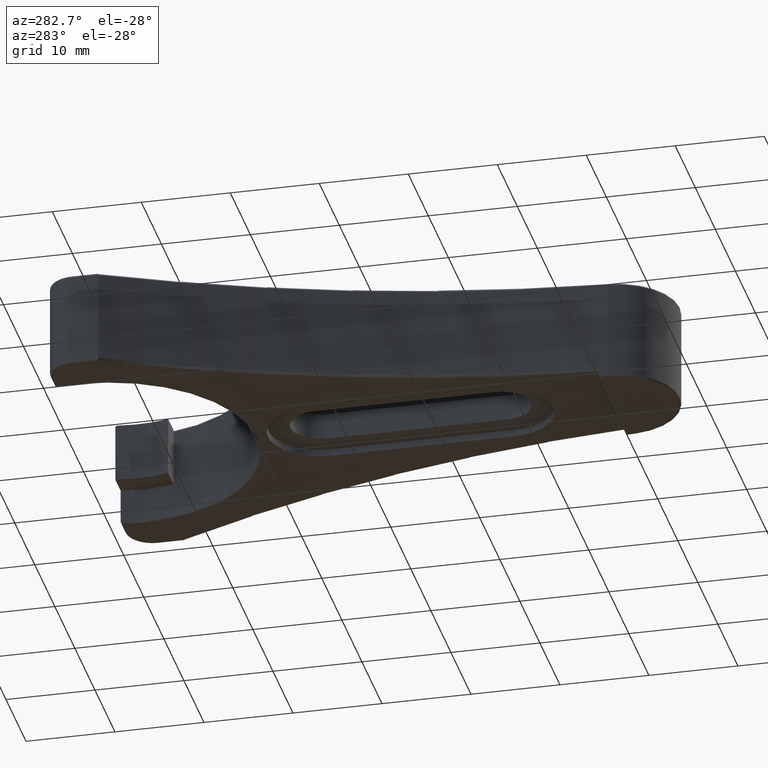
[diagram: clean part render]
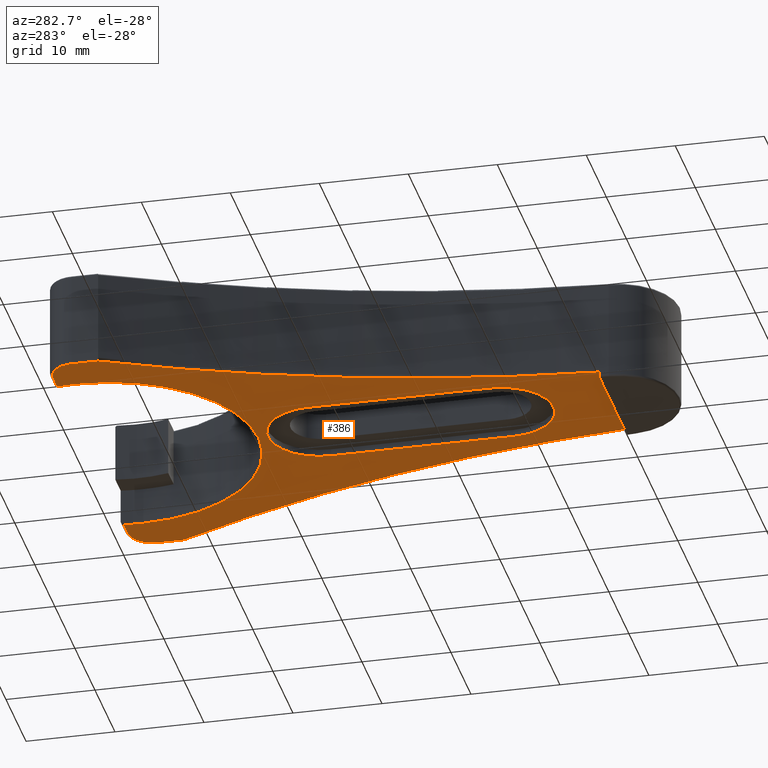
[diagram: same view with one face highlighted and labeled with its STEP entity id]
A machine part, auxiliary view. The second image highlights one B-rep face of the part: STEP entity #386.
In plain terms, the highlighted planar face has unit normal (-0, 0, 1).
Its self-contained STEP definition (entity closure, byte-faithful):
#1 = VERTEX_POINT ( 'NONE', #1088 ) ;
#3 = DIRECTION ( 'NONE',  ( 1.000000000000000000, 0.0000000000000000000, 0.0000000000000000000 ) ) ;
#4 = EDGE_CURVE ( 'NONE', #1, #32, #1930, .T. ) ;
#15 = CARTESIAN_POINT ( 'NONE',  ( -6.812482705004951500, 0.4999999999999865700, 0.0000000000000000000 ) ) ;
#25 = LINE ( 'NONE', #1257, #1774 ) ;
#32 = VERTEX_POINT ( 'NONE', #795 ) ;
#33 = DIRECTION ( 'NONE',  ( 1.000000000000000000, 0.0000000000000000000, 0.0000000000000000000 ) ) ;
#48 = CARTESIAN_POINT ( 'NONE',  ( 6.812482704986521800, 0.4999999999999865700, 0.0000000000000000000 ) ) ;
#56 = EDGE_CURVE ( 'NONE', #1946, #1012, #1042, .T. ) ;
#68 = VERTEX_POINT ( 'NONE', #1266 ) ;
#69 = AXIS2_PLACEMENT_3D ( 'NONE', #257, #1954, #568 ) ;
#79 = LINE ( 'NONE', #1793, #1027 ) ;
#93 = EDGE_CURVE ( 'NONE', #32, #1391, #25, .T. ) ;
#104 = CARTESIAN_POINT ( 'NONE',  ( -9.222417756143833600E-012, 57.00000000000057600, 0.0000000000000000000 ) ) ;
#117 = EDGE_CURVE ( 'NONE', #1070, #1139, #477, .T. ) ;
#120 = CIRCLE ( 'NONE', #69, 16.65000000000011600 ) ;
#121 = CARTESIAN_POINT ( 'NONE',  ( -18.65000000000922100, 59.24999999999925400, 0.0000000000000000000 ) ) ;
#147 = DIRECTION ( 'NONE',  ( -0.0000000000000000000, 0.0000000000000000000, 1.000000000000000000 ) ) ;
#167 = CIRCLE ( 'NONE', #1251, 2.750000000000005800 ) ;
#191 = CARTESIAN_POINT ( 'NONE',  ( -21.40000000000922500, 56.49999999999924700, 0.0000000000000000000 ) ) ;
#206 = CARTESIAN_POINT ( 'NONE',  ( 7.063372027942604900, 0.4999999999999865700, 0.0000000000000000000 ) ) ;
#210 = ORIENTED_EDGE ( 'NONE', *, *, #1163, .T. ) ;
#222 = CIRCLE ( 'NONE', #1445, 16.65000000000011600 ) ;
#225 = EDGE_CURVE ( 'NONE', #1425, #1, #120, .T. ) ;
#257 = CARTESIAN_POINT ( 'NONE',  ( -9.222417756143833600E-012, 57.00000000000057600, 0.0000000000000000000 ) ) ;
#263 = DIRECTION ( 'NONE',  ( 1.000000000000000000, 0.0000000000000000000, 0.0000000000000000000 ) ) ;
#268 = DIRECTION ( 'NONE',  ( -0.0000000000000000000, -1.000000000000000000, -0.0000000000000000000 ) ) ;
#277 = CARTESIAN_POINT ( 'NONE',  ( -5.800000000000069100, 13.00000000000078900, 0.0000000000000000000 ) ) ;
#326 = ORIENTED_EDGE ( 'NONE', *, *, #1907, .T. ) ;
#344 = DIRECTION ( 'NONE',  ( 0.0000000000000000000, -0.0000000000000000000, -1.000000000000000000 ) ) ;
#351 = AXIS2_PLACEMENT_3D ( 'NONE', #1489, #1981, #1972 ) ;
#354 = CARTESIAN_POINT ( 'NONE',  ( -9.222417756143833600E-012, 57.00000000000057600, 0.0000000000000000000 ) ) ;
#386 = ADVANCED_FACE ( 'NONE', ( #1874, #1455 ), #1047, .F. ) ;
#401 = DIRECTION ( 'NONE',  ( -1.156482317317913300E-015, -1.000000000000000000, 0.0000000000000000000 ) ) ;
#407 = AXIS2_PLACEMENT_3D ( 'NONE', #1980, #147, #3 ) ;
#411 = VERTEX_POINT ( 'NONE', #1844 ) ;
#418 = VECTOR ( 'NONE', #268, 1000.000000000000000 ) ;
#435 = VECTOR ( 'NONE', #1559, 1000.000000000000000 ) ;
#471 = DIRECTION ( 'NONE',  ( -1.156482317317913300E-015, 1.000000000000000000, -0.0000000000000000000 ) ) ;
#473 = ORIENTED_EDGE ( 'NONE', *, *, #1631, .T. ) ;
#477 = LINE ( 'NONE', #1914, #580 ) ;
#482 = AXIS2_PLACEMENT_3D ( 'NONE', #778, #344, #33 ) ;
#484 = VERTEX_POINT ( 'NONE', #1779 ) ;
#500 = CIRCLE ( 'NONE', #1094, 150.2500000000000300 ) ;
#513 = EDGE_CURVE ( 'NONE', #1662, #1813, #79, .T. ) ;
#543 = EDGE_CURVE ( 'NONE', #1813, #1425, #222, .T. ) ;
#547 = EDGE_CURVE ( 'NONE', #484, #411, #948, .T. ) ;
#565 = ORIENTED_EDGE ( 'NONE', *, *, #737, .T. ) ;
#568 = DIRECTION ( 'NONE',  ( 1.000000000000000000, 0.0000000000000000000, 0.0000000000000000000 ) ) ;
#569 = CARTESIAN_POINT ( 'NONE',  ( 5.800000000000011400, 13.00000000000078900, 0.0000000000000000000 ) ) ;
#580 = VECTOR ( 'NONE', #401, 1000.000000000000000 ) ;
#607 = EDGE_CURVE ( 'NONE', #411, #1486, #1754, .T. ) ;
#683 = ORIENTED_EDGE ( 'NONE', *, *, #1583, .T. ) ;
#691 = ORIENTED_EDGE ( 'NONE', *, *, #4, .T. ) ;
#692 = CARTESIAN_POINT ( 'NONE',  ( 18.64999999999077900, 59.24999999999925400, 0.0000000000000000000 ) ) ;
#709 = ORIENTED_EDGE ( 'NONE', *, *, #607, .T. ) ;
#724 = AXIS2_PLACEMENT_3D ( 'NONE', #1401, #1557, #1388 ) ;
#737 = EDGE_CURVE ( 'NONE', #68, #1151, #1655, .T. ) ;
#778 = CARTESIAN_POINT ( 'NONE',  ( -18.65000000000922100, 56.49999999999924700, 0.0000000000000000000 ) ) ;
#782 = AXIS2_PLACEMENT_3D ( 'NONE', #354, #1906, #1578 ) ;
#795 = CARTESIAN_POINT ( 'NONE',  ( 16.49727250183210000, 59.24999999999924700, 0.0000000000000000000 ) ) ;
#834 = EDGE_CURVE ( 'NONE', #1139, #1012, #1977, .T. ) ;
#872 = CARTESIAN_POINT ( 'NONE',  ( 0.0000000000000000000, 13.00000000000078900, 0.0000000000000000000 ) ) ;
#896 = CARTESIAN_POINT ( 'NONE',  ( -16.49727250185054600, 59.24999999999924700, 0.0000000000000000000 ) ) ;
#899 = ORIENTED_EDGE ( 'NONE', *, *, #547, .T. ) ;
#911 = ORIENTED_EDGE ( 'NONE', *, *, #513, .T. ) ;
#916 = CARTESIAN_POINT ( 'NONE',  ( 21.39999999999078300, 56.49999999999924700, 0.0000000000000000000 ) ) ;
#928 = EDGE_LOOP ( 'NONE', ( #473, #899, #709, #683 ) ) ;
#948 = LINE ( 'NONE', #569, #1722 ) ;
#966 = CARTESIAN_POINT ( 'NONE',  ( -5.800000000000069100, 33.49999999999984400, 0.0000000000000000000 ) ) ;
#991 = ORIENTED_EDGE ( 'NONE', *, *, #834, .T. ) ;
#1012 = VERTEX_POINT ( 'NONE', #48 ) ;
#1027 = VECTOR ( 'NONE', #1606, 1000.000000000000000 ) ;
#1042 = LINE ( 'NONE', #206, #435 ) ;
#1047 = PLANE ( 'NONE',  #407 ) ;
#1067 = LINE ( 'NONE', #277, #418 ) ;
#1069 = AXIS2_PLACEMENT_3D ( 'NONE', #872, #1643, #263 ) ;
#1070 = VERTEX_POINT ( 'NONE', #916 ) ;
#1088 = CARTESIAN_POINT ( 'NONE',  ( 16.64999999999089300, 57.00000000000057600, 1.084202172485504400E-016 ) ) ;
#1094 = AXIS2_PLACEMENT_3D ( 'NONE', #1577, #1893, #1721 ) ;
#1139 = VERTEX_POINT ( 'NONE', #1878 ) ;
#1151 = VERTEX_POINT ( 'NONE', #191 ) ;
#1153 = DIRECTION ( 'NONE',  ( 1.000000000000000000, 0.0000000000000000000, 0.0000000000000000000 ) ) ;
#1163 = EDGE_CURVE ( 'NONE', #1946, #68, #500, .T. ) ;
#1164 = VERTEX_POINT ( 'NONE', #1246 ) ;
#1246 = CARTESIAN_POINT ( 'NONE',  ( -5.800000000000069100, 13.00000000000078900, 0.0000000000000000000 ) ) ;
#1251 = AXIS2_PLACEMENT_3D ( 'NONE', #1592, #1556, #1573 ) ;
#1257 = CARTESIAN_POINT ( 'NONE',  ( 18.64999999999077900, 59.24999999999925400, 0.0000000000000000000 ) ) ;
#1266 = CARTESIAN_POINT ( 'NONE',  ( -21.40000000000922100, 53.55756820171822600, 0.0000000000000000000 ) ) ;
#1312 = CIRCLE ( 'NONE', #1069, 5.800000000000040700 ) ;
#1365 = CARTESIAN_POINT ( 'NONE',  ( -21.40000000000915700, -2.474872159061393600E-014, 0.0000000000000000000 ) ) ;
#1388 = DIRECTION ( 'NONE',  ( 1.000000000000000000, 0.0000000000000000000, 0.0000000000000000000 ) ) ;
#1391 = VERTEX_POINT ( 'NONE', #692 ) ;
#1401 = CARTESIAN_POINT ( 'NONE',  ( 156.5307819279513800, -12.12906876150258400, 0.0000000000000000000 ) ) ;
#1414 = DIRECTION ( 'NONE',  ( 1.000000000000000000, 2.732741864993315900E-015, 0.0000000000000000000 ) ) ;
#1425 = VERTEX_POINT ( 'NONE', #1763 ) ;
#1445 = AXIS2_PLACEMENT_3D ( 'NONE', #104, #1766, #1153 ) ;
#1453 = VECTOR ( 'NONE', #471, 1000.000000000000000 ) ;
#1455 = FACE_OUTER_BOUND ( 'NONE', #1729, .T. ) ;
#1486 = VERTEX_POINT ( 'NONE', #966 ) ;
#1489 = CARTESIAN_POINT ( 'NONE',  ( 4.119968255446100100E-018, 33.49999999999933200, 0.0000000000000000000 ) ) ;
#1491 = ORIENTED_EDGE ( 'NONE', *, *, #225, .T. ) ;
#1556 = DIRECTION ( 'NONE',  ( 0.0000000000000000000, -0.0000000000000000000, -1.000000000000000000 ) ) ;
#1557 = DIRECTION ( 'NONE',  ( -0.0000000000000000000, 0.0000000000000000000, 1.000000000000000000 ) ) ;
#1559 = DIRECTION ( 'NONE',  ( 1.000000000000000000, -0.0000000000000000000, -0.0000000000000000000 ) ) ;
#1562 = ORIENTED_EDGE ( 'NONE', *, *, #56, .F. ) ;
#1573 = DIRECTION ( 'NONE',  ( 1.000000000000000000, 0.0000000000000000000, 0.0000000000000000000 ) ) ;
#1577 = CARTESIAN_POINT ( 'NONE',  ( -156.5307819279698300, -12.12906876150258400, 0.0000000000000000000 ) ) ;
#1578 = DIRECTION ( 'NONE',  ( 1.000000000000000000, 0.0000000000000000000, 0.0000000000000000000 ) ) ;
#1583 = EDGE_CURVE ( 'NONE', #1486, #1164, #1067, .T. ) ;
#1592 = CARTESIAN_POINT ( 'NONE',  ( 18.64999999999077900, 56.49999999999924700, 0.0000000000000000000 ) ) ;
#1606 = DIRECTION ( 'NONE',  ( 1.000000000000000000, -2.732741864993315900E-015, 0.0000000000000000000 ) ) ;
#1631 = EDGE_CURVE ( 'NONE', #1164, #484, #1312, .T. ) ;
#1634 = DIRECTION ( 'NONE',  ( 2.792481693035964800E-015, 1.000000000000000000, 0.0000000000000000000 ) ) ;
#1643 = DIRECTION ( 'NONE',  ( 0.0000000000000000000, 0.0000000000000000000, 1.000000000000000000 ) ) ;
#1655 = LINE ( 'NONE', #1365, #1453 ) ;
#1662 = VERTEX_POINT ( 'NONE', #121 ) ;
#1721 = DIRECTION ( 'NONE',  ( 1.000000000000000000, 0.0000000000000000000, 0.0000000000000000000 ) ) ;
#1722 = VECTOR ( 'NONE', #1634, 1000.000000000000000 ) ;
#1729 = EDGE_LOOP ( 'NONE', ( #1861, #991, #1562, #210, #565, #326, #911, #1788, #1491, #691, #1885, #1947 ) ) ;
#1754 = CIRCLE ( 'NONE', #351, 5.800000000000069100 ) ;
#1763 = CARTESIAN_POINT ( 'NONE',  ( -16.65000000000933900, 57.00000000000057600, 1.084202172485504400E-016 ) ) ;
#1766 = DIRECTION ( 'NONE',  ( -0.0000000000000000000, 0.0000000000000000000, 1.000000000000000000 ) ) ;
#1774 = VECTOR ( 'NONE', #1414, 1000.000000000000000 ) ;
#1779 = CARTESIAN_POINT ( 'NONE',  ( 5.800000000000011400, 13.00000000000078900, 0.0000000000000000000 ) ) ;
#1788 = ORIENTED_EDGE ( 'NONE', *, *, #543, .T. ) ;
#1793 = CARTESIAN_POINT ( 'NONE',  ( 1.619149555008518100E-013, 59.24999999999920400, 0.0000000000000000000 ) ) ;
#1813 = VERTEX_POINT ( 'NONE', #896 ) ;
#1844 = CARTESIAN_POINT ( 'NONE',  ( 5.800000000000069100, 33.49999999999984400, 0.0000000000000000000 ) ) ;
#1861 = ORIENTED_EDGE ( 'NONE', *, *, #117, .T. ) ;
#1874 = FACE_BOUND ( 'NONE', #928, .T. ) ;
#1878 = CARTESIAN_POINT ( 'NONE',  ( 21.39999999999077600, 53.55756820171821200, 0.0000000000000000000 ) ) ;
#1885 = ORIENTED_EDGE ( 'NONE', *, *, #93, .T. ) ;
#1893 = DIRECTION ( 'NONE',  ( -0.0000000000000000000, 0.0000000000000000000, 1.000000000000000000 ) ) ;
#1903 = CIRCLE ( 'NONE', #482, 2.750000000000005800 ) ;
#1906 = DIRECTION ( 'NONE',  ( -0.0000000000000000000, 0.0000000000000000000, 1.000000000000000000 ) ) ;
#1907 = EDGE_CURVE ( 'NONE', #1151, #1662, #1903, .T. ) ;
#1914 = CARTESIAN_POINT ( 'NONE',  ( 21.39999999999077600, 53.49999999999935300, 0.0000000000000000000 ) ) ;
#1930 = CIRCLE ( 'NONE', #782, 16.65000000000011600 ) ;
#1946 = VERTEX_POINT ( 'NONE', #15 ) ;
#1947 = ORIENTED_EDGE ( 'NONE', *, *, #1987, .T. ) ;
#1954 = DIRECTION ( 'NONE',  ( -0.0000000000000000000, 0.0000000000000000000, 1.000000000000000000 ) ) ;
#1972 = DIRECTION ( 'NONE',  ( 1.000000000000000000, 0.0000000000000000000, 0.0000000000000000000 ) ) ;
#1977 = CIRCLE ( 'NONE', #724, 150.2500000000000600 ) ;
#1980 = CARTESIAN_POINT ( 'NONE',  ( 0.0000000000000000000, 0.0000000000000000000, 0.0000000000000000000 ) ) ;
#1981 = DIRECTION ( 'NONE',  ( 0.0000000000000000000, 0.0000000000000000000, 1.000000000000000000 ) ) ;
#1987 = EDGE_CURVE ( 'NONE', #1391, #1070, #167, .T. ) ;